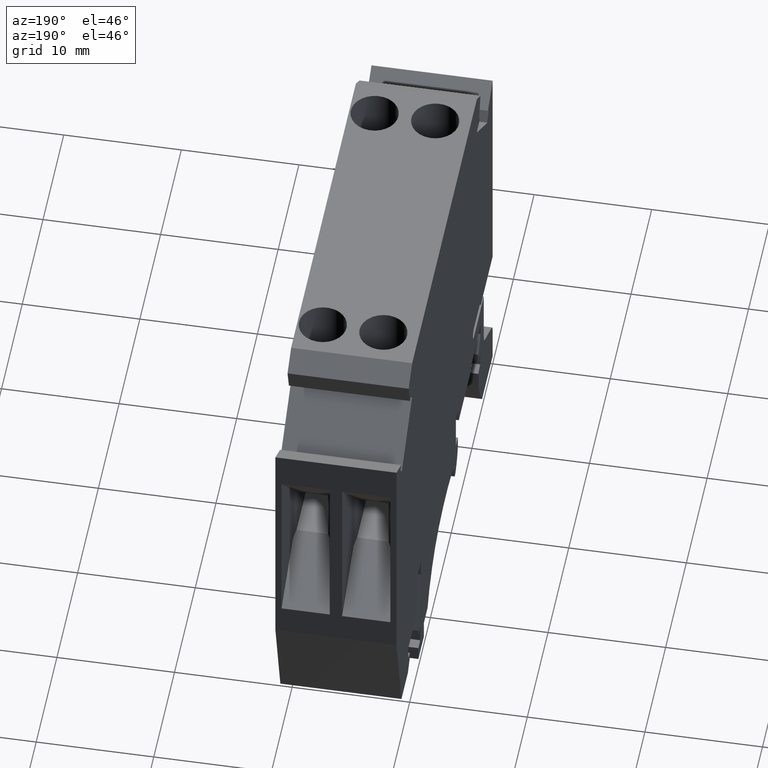
[diagram: clean part render]
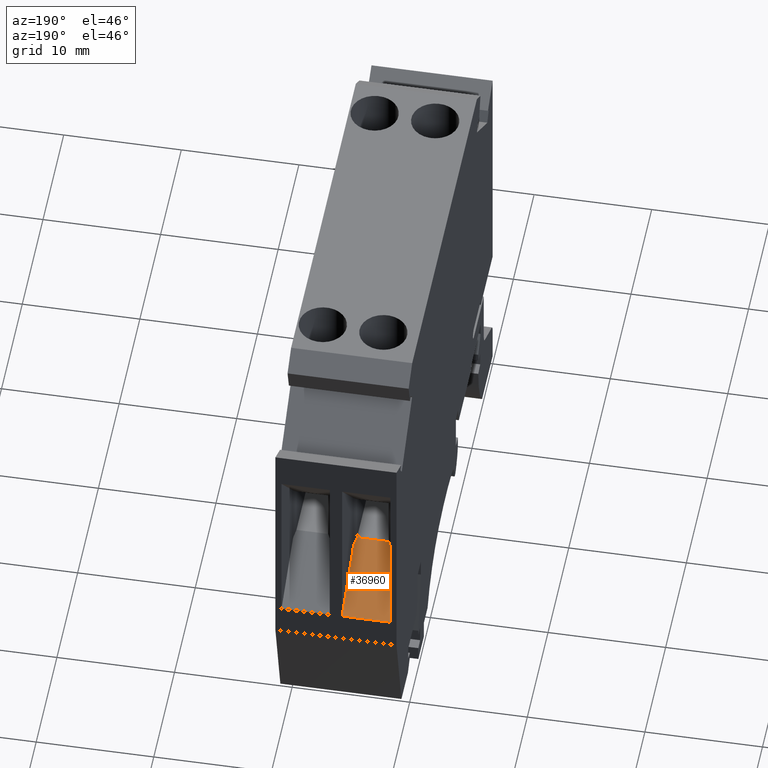
[diagram: same view with one face highlighted and labeled with its STEP entity id]
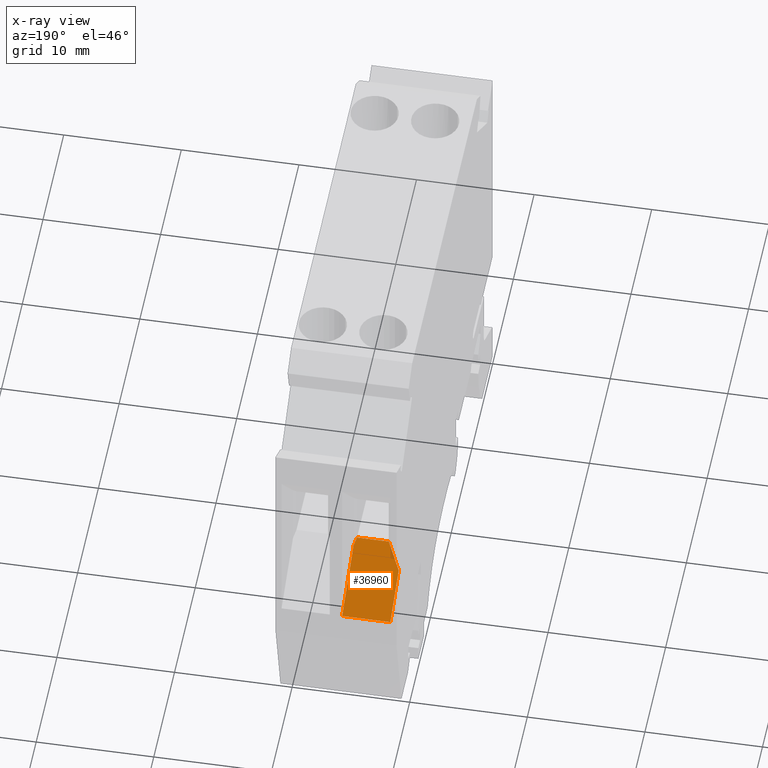
[diagram: x-ray of the same camera — body ghosted, the highlighted face saturated]
A machine part, auxiliary view. The second image highlights one B-rep face of the part: STEP entity #36960.
The next image is the same camera in x-ray: the body ghosted, the highlighted face saturated — about 1% of this face is hidden behind the body in this view.
In plain terms, the highlighted planar face has unit normal (-0, 0.4601, 0.8879).
Its self-contained STEP definition (entity closure, byte-faithful):
#33910=CARTESIAN_POINT('',(1.49790146619231,19.3295237515583,
0.525000000000004));
#33920=VERTEX_POINT('',#33910);
#34070=CARTESIAN_POINT('',(1.49790146619231,19.3295237515583,4.625));
#34080=VERTEX_POINT('',#34070);
#34110=CARTESIAN_POINT('',(1.49790146619231,19.3295237515583,5.15));
#34120=DIRECTION('',(0.,0.,-1.));
#34130=VECTOR('',#34120,1.);
#34140=LINE('',#34110,#34130);
#34150=EDGE_CURVE('',#34080,#33920,#34140,.T.);
#35820=CARTESIAN_POINT('',(-4.67709853380776,22.5295237515583,4.45));
#35830=VERTEX_POINT('',#35820);
#36180=CARTESIAN_POINT('',(-4.02565782276799,22.1919350430033,
4.62500000000001));
#36190=VERTEX_POINT('',#36180);
#36240=CARTESIAN_POINT('',(13.4527094661923,13.1343196058094,
9.32030722248846));
#36250=DIRECTION('',(0.863637887535789,-0.447553237265506,
0.232003661664824));
#36260=VECTOR('',#36250,1.);
#36270=LINE('',#36240,#36260);
#36280=EDGE_CURVE('',#35830,#36190,#36270,.T.);
#36450=CARTESIAN_POINT('',(13.4527094661923,13.1343196058094,4.625));
#36460=DIRECTION('',(0.887863315807394,-0.460107305357674,0.));
#36470=VECTOR('',#36460,1.);
#36480=LINE('',#36450,#36470);
#36490=EDGE_CURVE('',#36190,#34080,#36480,.T.);
#36640=CARTESIAN_POINT('',(-4.67709853380776,22.5295237515583,1.75));
#36650=DIRECTION('',(0.460107305357674,0.887863315807394,0.));
#36660=DIRECTION('',(0.887863315807394,-0.460107305357674,0.));
#36670=AXIS2_PLACEMENT_3D('',#36640,#36650,#36660);
#36680=PLANE('',#36670);
#36690=ORIENTED_EDGE('',*,*,#36280,.T.);
#36700=CARTESIAN_POINT('',(-4.67709853380776,22.5295237515583,5.15));
#36710=DIRECTION('',(0.,0.,1.));
#36720=VECTOR('',#36710,1.);
#36730=LINE('',#36700,#36720);
#36740=CARTESIAN_POINT('',(-4.67709853380776,22.5295237515583,1.75));
#36750=VERTEX_POINT('',#36740);
#36760=EDGE_CURVE('',#36750,#35830,#36730,.T.);
#36770=ORIENTED_EDGE('',*,*,#36760,.T.);
#36780=CARTESIAN_POINT('',(13.4527094661923,13.1343196058094,
-8.71724952915626));
#36790=DIRECTION('',(0.790104408757777,-0.409446819113338,
-0.456166993084213));
#36800=VECTOR('',#36790,1.);
#36810=LINE('',#36780,#36800);
#36820=CARTESIAN_POINT('',(-2.55533629453588,21.4299870445672,
0.525000000000004));
#36830=VERTEX_POINT('',#36820);
#36840=EDGE_CURVE('',#36750,#36830,#36810,.T.);
#36850=ORIENTED_EDGE('',*,*,#36840,.F.);
#36860=CARTESIAN_POINT('',(13.4527094661923,13.1343196058094,
0.525000000000004));
#36870=DIRECTION('',(-0.887863315807394,0.460107305357674,0.));
#36880=VECTOR('',#36870,1.);
#36890=LINE('',#36860,#36880);
#36900=EDGE_CURVE('',#33920,#36830,#36890,.T.);
#36910=ORIENTED_EDGE('',*,*,#36900,.T.);
#36920=ORIENTED_EDGE('',*,*,#34150,.T.);
#36930=ORIENTED_EDGE('',*,*,#36490,.T.);
#36940=EDGE_LOOP('',(#36930,#36920,#36910,#36850,#36770,#36690));
#36950=FACE_OUTER_BOUND('',#36940,.T.);
#36960=ADVANCED_FACE('',(#36950),#36680,.T.);